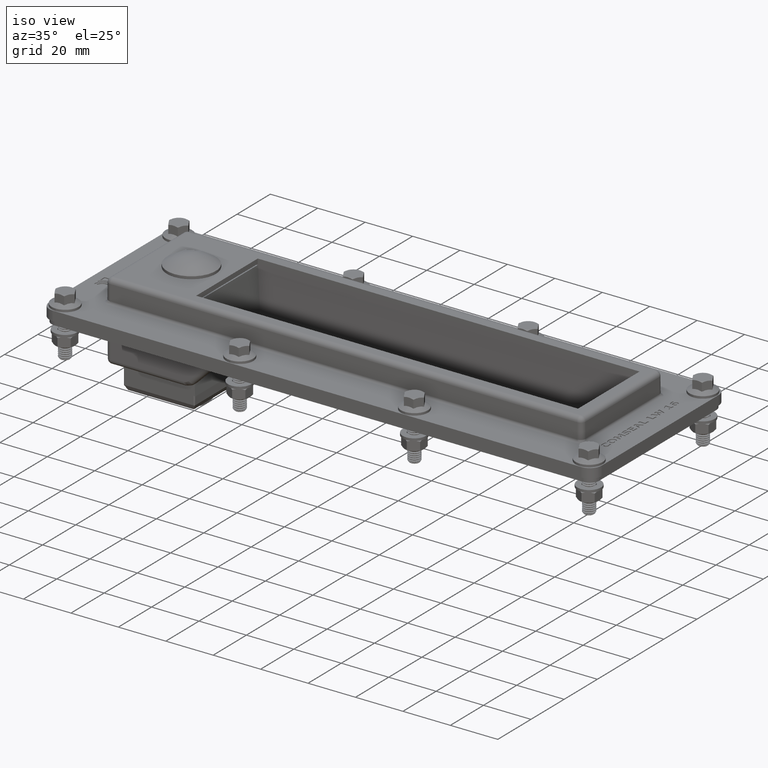
[diagram: clean part render]
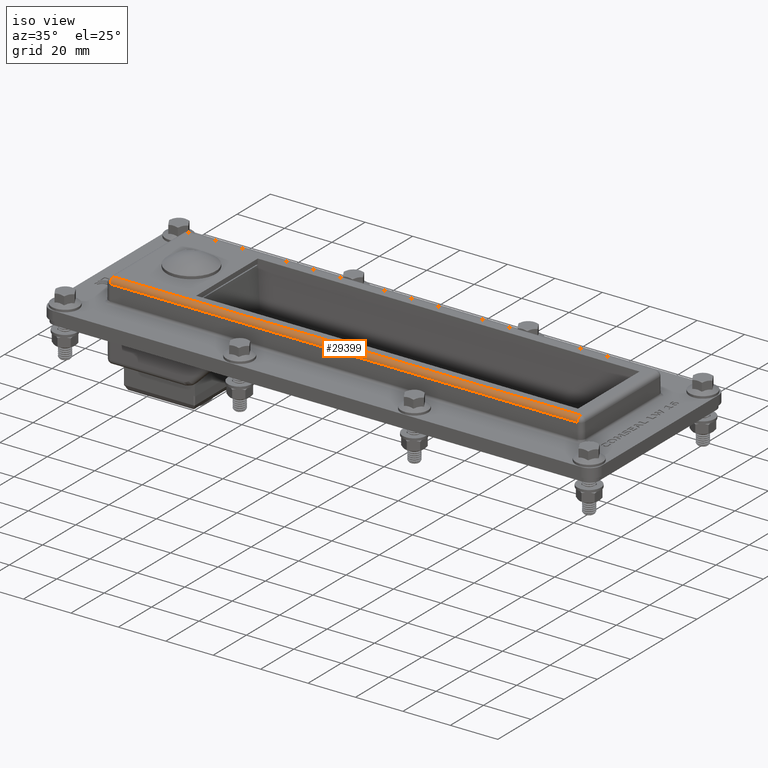
[diagram: same view with one face highlighted and labeled with its STEP entity id]
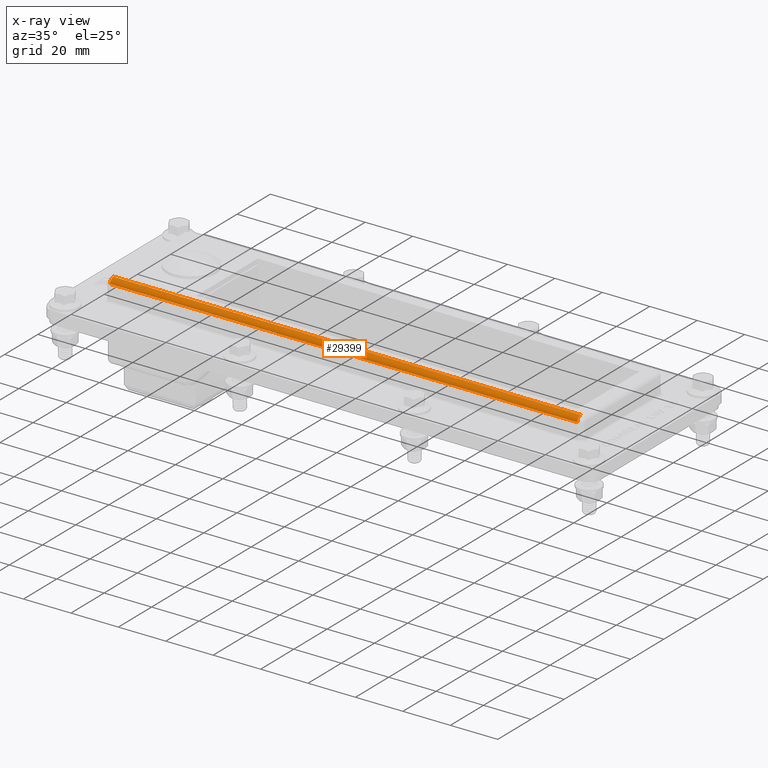
[diagram: x-ray of the same camera — body ghosted, the highlighted face saturated]
A machine part, iso view. The second image highlights one B-rep face of the part: STEP entity #29399.
The next image is the same camera in x-ray: the body ghosted, the highlighted face saturated — about 0% of this face is hidden behind the body in this view.
In plain terms, the highlighted cylindrical surface (edge-blend (fillet) strip) has radius 2 mm, axis along (-1, -0, -0).
Its self-contained STEP definition (entity closure, byte-faithful):
#25204=CARTESIAN_POINT('',(98.517377578810041,-24.267301424938346,21.017453070996737));
#25205=VERTEX_POINT('',#25204);
#25228=CARTESIAN_POINT('',(98.517377578810027,-22.267377578810002,22.999999999999993));
#25229=VERTEX_POINT('',#25228);
#25237=CARTESIAN_POINT('',(98.517377578810027,-22.267377578810002,20.999999999999993));
#25238=DIRECTION('',(1.0,0.0,0.0));
#25239=DIRECTION('',(0.0,-0.704014724455969,0.710185375623285));
#25240=AXIS2_PLACEMENT_3D('',#25237,#25238,#25239);
#25241=CIRCLE('',#25240,1.999999999999998);
#25242=EDGE_CURVE('',#25229,#25205,#25241,.T.);
#25253=CARTESIAN_POINT('',(-98.517377578810027,-24.267301424938346,21.017453070996737));
#25254=VERTEX_POINT('',#25253);
#25278=CARTESIAN_POINT('',(-98.517377578810027,-22.267377578810002,22.999999999999993));
#25279=VERTEX_POINT('',#25278);
#25280=CARTESIAN_POINT('',(-98.517377578810027,-22.267377578810002,20.999999999999993));
#25281=DIRECTION('',(-1.0,0.0,0.0));
#25282=DIRECTION('',(0.0,-0.704014724455969,0.710185375623285));
#25283=AXIS2_PLACEMENT_3D('',#25280,#25281,#25282);
#25284=CIRCLE('',#25283,1.999999999999998);
#25285=EDGE_CURVE('',#25254,#25279,#25284,.T.);
#25304=CARTESIAN_POINT('',(-98.517377578810013,-24.267301424938346,21.017453070996737));
#25305=DIRECTION('',(1.0,0.0,0.0));
#25306=VECTOR('',#25305,197.03475515762005);
#25307=LINE('',#25304,#25306);
#25308=EDGE_CURVE('',#25254,#25205,#25307,.T.);
#29383=CARTESIAN_POINT('',(50.249999999999986,-22.267377578810002,20.999999999999993));
#29384=DIRECTION('',(-1.0,-6.103840E-035,-6.994308E-033));
#29385=DIRECTION('',(0.0,-0.704014724455968,0.710185375623285));
#29386=AXIS2_PLACEMENT_3D('',#29383,#29384,#29385);
#29387=CYLINDRICAL_SURFACE('',#29386,2.0);
#29388=ORIENTED_EDGE('',*,*,#25242,.F.);
#29389=CARTESIAN_POINT('',(98.517377578810027,-22.267377578810002,22.999999999999993));
#29390=DIRECTION('',(-1.0,0.0,0.0));
#29391=VECTOR('',#29390,197.03475515762005);
#29392=LINE('',#29389,#29391);
#29393=EDGE_CURVE('',#25229,#25279,#29392,.T.);
#29394=ORIENTED_EDGE('',*,*,#29393,.T.);
#29395=ORIENTED_EDGE('',*,*,#25285,.F.);
#29396=ORIENTED_EDGE('',*,*,#25308,.T.);
#29397=EDGE_LOOP('',(#29388,#29394,#29395,#29396));
#29398=FACE_OUTER_BOUND('',#29397,.T.);
#29399=ADVANCED_FACE('',(#29398),#29387,.T.);